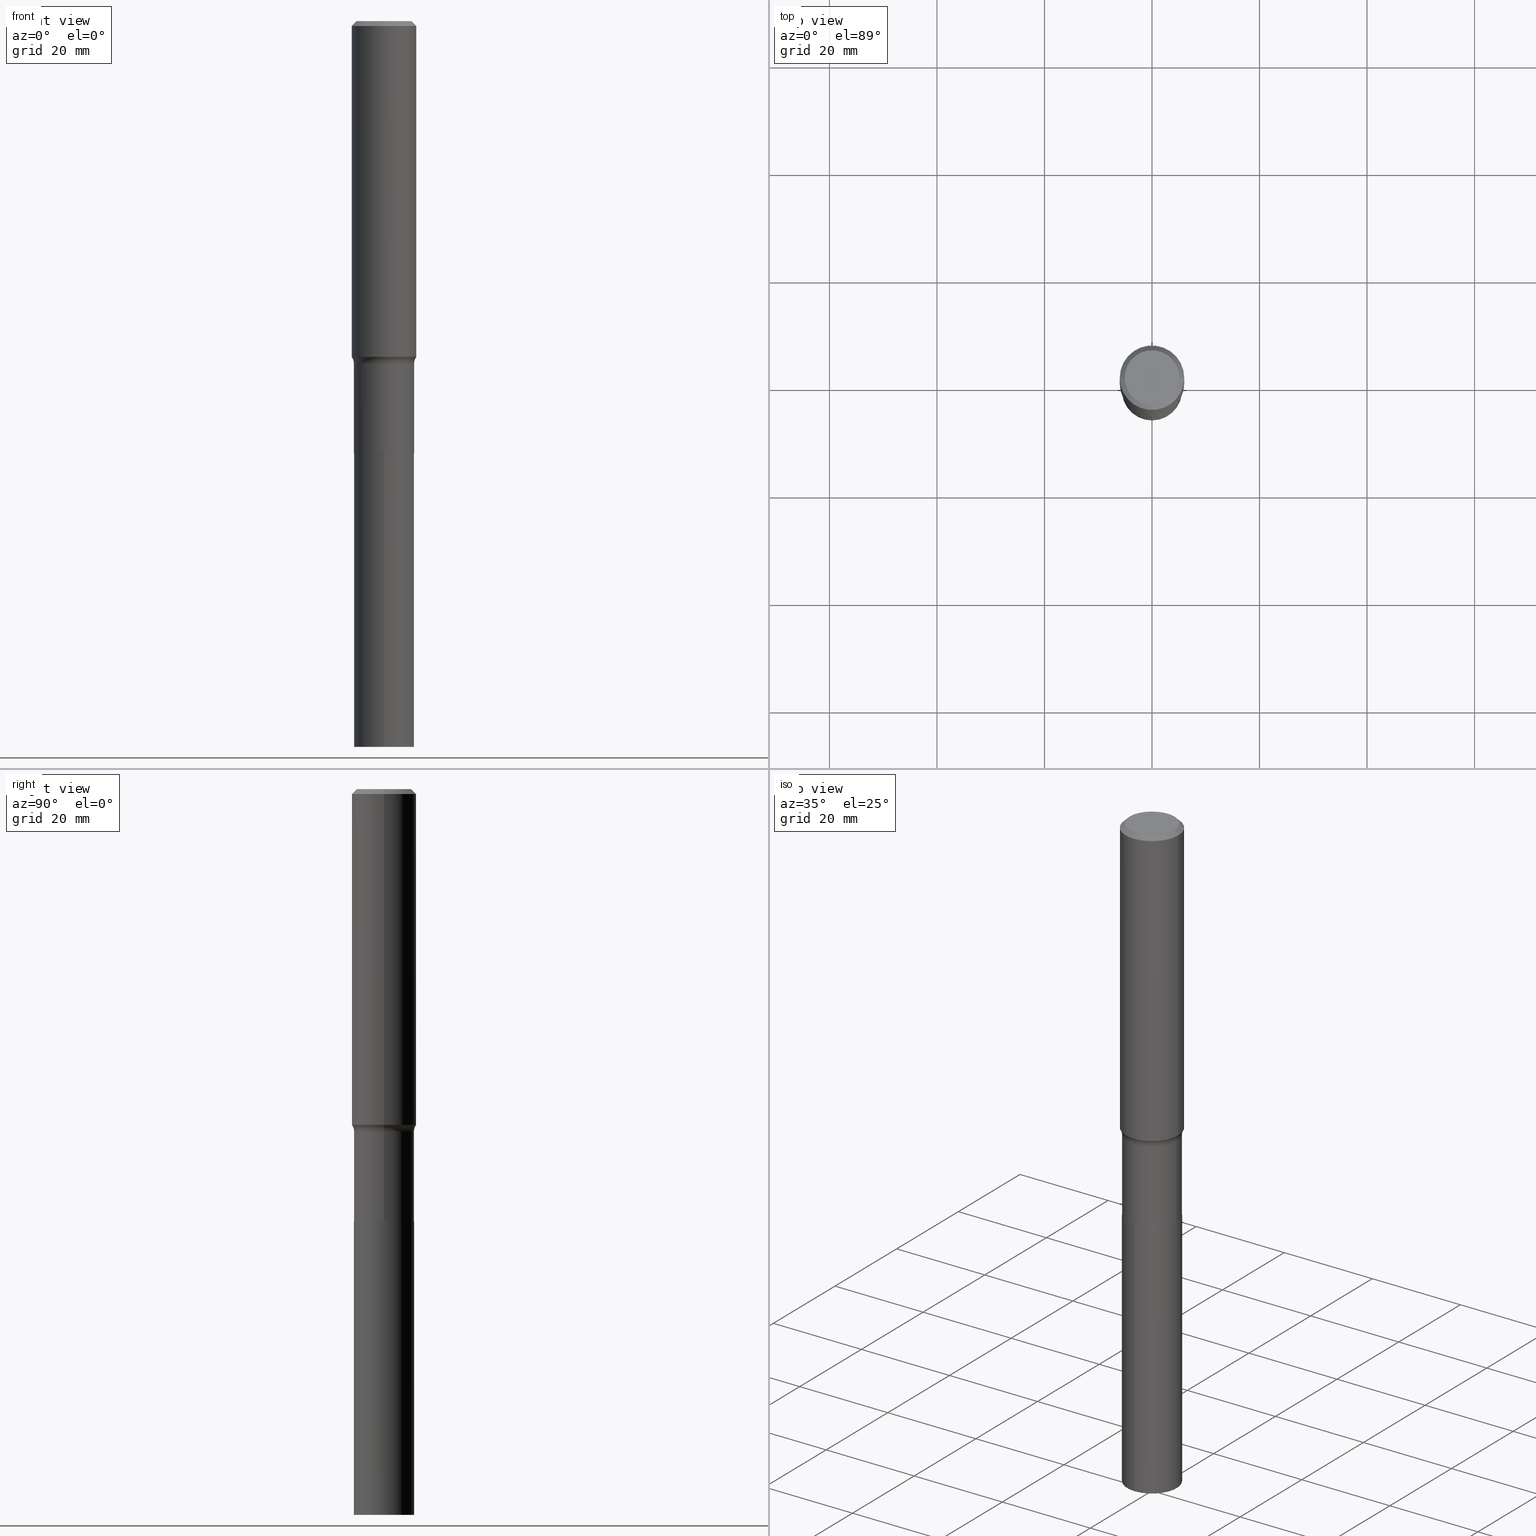
[diagram: canonical four-view strip — front | top / right | iso, engineering-drawing reading convention]
A machine part, canonical four-view strip (front | top / right | iso — engineering-drawing reading convention). The complete STEP part file that produces these views, byte-faithful:
ISO-10303-21;
HEADER;
FILE_DESCRIPTION (( 'STEP AP203' ),
    '1' );
FILE_NAME ('67900.STEP',
    '2024-04-19T16:57:50',
    ( '' ),
    ( '' ),
    'SwSTEP 2.0',
    'SolidWorks 2023',
    '' );
FILE_SCHEMA (( 'CONFIG_CONTROL_DESIGN' ));
ENDSEC;

DATA;
#1 = DIRECTION ( 'NONE',  ( 0.7071067811865453523, -7.319954787623248157E-15, -0.7071067811865496822 ) ) ;
#2 = CIRCLE ( 'NONE', #145, 0.08000000000000002942 ) ;
#3 = DIRECTION ( 'NONE',  ( 1.000000000000000000, -6.982962677686267499E-15, 4.883557194083112901E-29 ) ) ;
#4 = LINE ( 'NONE', #22, #418 ) ;
#5 = EDGE_CURVE ( 'NONE', #17, #92, #45, .T. ) ;
#6 = CARTESIAN_POINT ( 'NONE',  ( 1.299823801295359673E-28, -1.855640517026451512E-14, -5.315000000000001279 ) ) ;
#7 = AXIS2_PLACEMENT_3D ( 'NONE', #444, #439, #179 ) ;
#8 = DIRECTION ( 'NONE',  ( -2.445734654523707896E-29, 3.491100628891162670E-15, 1.000000000000000000 ) ) ;
#9 = ORIENTED_EDGE ( 'NONE', *, *, #431, .F. ) ;
#10 = CYLINDRICAL_SURFACE ( 'NONE', #7, 0.2204500000000000071 ) ;
#11 = ORIENTED_EDGE ( 'NONE', *, *, #431, .T. ) ;
#12 =( CONVERSION_BASED_UNIT ( 'INCH', #266 ) LENGTH_UNIT ( ) NAMED_UNIT ( #19 ) );
#13 = AXIS2_PLACEMENT_3D ( 'NONE', #311, #298, #128 ) ;
#14 = CC_DESIGN_PERSON_AND_ORGANIZATION_ASSIGNMENT ( #347, #320, ( #448 ) ) ;
#15 = FACE_OUTER_BOUND ( 'NONE', #130, .T. ) ;
#16 = VERTEX_POINT ( 'NONE', #91 ) ;
#17 = VERTEX_POINT ( 'NONE', #236 ) ;
#18 = ADVANCED_FACE ( 'NONE', ( #380 ), #447, .T. ) ;
#19 = DIMENSIONAL_EXPONENTS ( 1.000000000000000000, 0.000000000000000000, 0.000000000000000000, 0.000000000000000000, 0.000000000000000000, 0.000000000000000000, 0.000000000000000000 ) ;
#20 = DIRECTION ( 'NONE',  ( -0.7071067811865453523, 2.468850131082234184E-15, -0.7071067811865496822 ) ) ;
#21 = EDGE_LOOP ( 'NONE', ( #229, #195, #123, #379 ) ) ;
#22 = CARTESIAN_POINT ( 'NONE',  ( -0.2199500000000000066, -9.491191171473061362E-15, -3.166000000000000814 ) ) ;
#23 = AXIS2_PLACEMENT_3D ( 'NONE', #180, #113, #332 ) ;
#24 = APPROVAL_STATUS ( 'not_yet_approved' ) ;
#25 = DIRECTION ( 'NONE',  ( -2.445734654523707896E-29, 3.491100628891162670E-15, 1.000000000000000000 ) ) ;
#26 = ORIENTED_EDGE ( 'NONE', *, *, #423, .T. ) ;
#27 = APPROVAL_STATUS ( 'not_yet_approved' ) ;
#28 = CARTESIAN_POINT ( 'NONE',  ( 0.2361999999999999933, -1.744152810908849053E-15, -0.03543000000000021132 ) ) ;
#29 = EDGE_LOOP ( 'NONE', ( #407, #310, #228, #260 ) ) ;
#30 = APPROVAL_ROLE ( '' ) ;
#31 = CONICAL_SURFACE ( 'NONE', #90, 0.2361999999999999933, 0.7853981633974452814 ) ;
#32 = FACE_OUTER_BOUND ( 'NONE', #21, .T. ) ;
#33 = MECHANICAL_CONTEXT ( 'NONE', #258, 'mechanical' ) ;
#34 = LINE ( 'NONE', #28, #427 ) ;
#35 = DESIGN_CONTEXT ( 'detailed design', #284, 'design' ) ;
#36 = DIRECTION ( 'NONE',  ( -2.445468806185136877E-29, 3.491481338843145188E-15, 1.000000000000000000 ) ) ;
#37 = EDGE_CURVE ( 'NONE', #308, #263, #440, .T. ) ;
#38 = DIRECTION ( 'NONE',  ( -2.445734654523708177E-29, 3.491100628891163064E-15, 1.000000000000000000 ) ) ;
#39 = AXIS2_PLACEMENT_3D ( 'NONE', #421, #264, #191 ) ;
#40 = AXIS2_PLACEMENT_3D ( 'NONE', #381, #344, #48 ) ;
#41 = DIRECTION ( 'NONE',  ( -2.445734654523708177E-29, 3.491100628891163064E-15, 1.000000000000000000 ) ) ;
#42 = CARTESIAN_POINT ( 'NONE',  ( 0.3004499999999999393, -1.085082570485672199E-14, -2.506900000000000350 ) ) ;
#43 = ADVANCED_FACE ( 'NONE', ( #15 ), #345, .T. ) ;
#44 = DIRECTION ( 'NONE',  ( -6.982962677686266711E-15, -1.000000000000000000, 2.478428662884339509E-15 ) ) ;
#45 = CIRCLE ( 'NONE', #242, 0.2199500000000000066 ) ;
#46 = ORIENTED_EDGE ( 'NONE', *, *, #208, .T. ) ;
#47 = DIRECTION ( 'NONE',  ( -2.445468806185136597E-29, 3.491481338843145583E-15, 1.000000000000000000 ) ) ;
#48 = DIRECTION ( 'NONE',  ( 1.000000000000000000, -6.982962677686268288E-15, 0.000000000000000000 ) ) ;
#49 = DIRECTION ( 'NONE',  ( -2.445468806185136597E-29, 3.491481338843145583E-15, 1.000000000000000000 ) ) ;
#50 = ORIENTED_EDGE ( 'NONE', *, *, #361, .F. ) ;
#51 = CARTESIAN_POINT ( 'NONE',  ( 7.742354240382144770E-29, -1.105402991877740236E-14, -3.166000000000000814 ) ) ;
#52 = ORIENTED_EDGE ( 'NONE', *, *, #450, .F. ) ;
#53 = ORIENTED_EDGE ( 'NONE', *, *, #238, .F. ) ;
#54 = DIRECTION ( 'NONE',  ( -6.982962677686265922E-15, -1.000000000000000000, 3.491100628891162670E-15 ) ) ;
#55 = ORIENTED_EDGE ( 'NONE', *, *, #199, .F. ) ;
#56 = FACE_OUTER_BOUND ( 'NONE', #335, .T. ) ;
#57 = ORIENTED_EDGE ( 'NONE', *, *, #235, .T. ) ;
#58 = CIRCLE ( 'NONE', #231, 0.2007700000000000040 ) ;
#59 = PERSON_AND_ORGANIZATION ( #89, #232 ) ;
#60 = APPROVAL_PERSON_ORGANIZATION ( #275, #63, #395 ) ;
#61 = DIRECTION ( 'NONE',  ( -2.445468806185136597E-29, 3.491481338843145583E-15, 1.000000000000000000 ) ) ;
#62 = DIRECTION ( 'NONE',  ( -2.445468806185136597E-29, 3.491481338843145583E-15, 1.000000000000000000 ) ) ;
#63 = APPROVAL ( #27, 'UNSPECIFIED' ) ;
#64 = CARTESIAN_POINT ( 'NONE',  ( 0.2362000000000003264, -1.023574943410652512E-14, -2.459235154463693007 ) ) ;
#65 = VERTEX_POINT ( 'NONE', #338 ) ;
#66 = DATE_AND_TIME ( #138, #465 ) ;
#67 = DIRECTION ( 'NONE',  ( 0.7071067811864267805, -2.468850131080992517E-15, 0.7071067811866682540 ) ) ;
#68 = AXIS2_PLACEMENT_3D ( 'NONE', #215, #38, #44 ) ;
#69 = ADVANCED_FACE ( 'NONE', ( #302 ), #95, .F. ) ;
#70 = PERSON_AND_ORGANIZATION ( #89, #232 ) ;
#71 = CARTESIAN_POINT ( 'NONE',  ( 0.2204499999999999238, -1.029218869064181876E-14, -2.506900000000000350 ) ) ;
#72 = EDGE_CURVE ( 'NONE', #263, #308, #300, .T. ) ;
#73 = FACE_OUTER_BOUND ( 'NONE', #162, .T. ) ;
#74 = CARTESIAN_POINT ( 'NONE',  ( -0.2361999999999999933, -2.676736474870760158E-15, -0.03543000000000021132 ) ) ;
#75 = CIRCLE ( 'NONE', #133, 0.2204499999999999238 ) ;
#76 = LOCAL_TIME ( 12, 57, 50.00000000000000000, #129 ) ;
#77 = EDGE_CURVE ( 'NONE', #420, #88, #58, .T. ) ;
#78 = DIRECTION ( 'NONE',  ( 1.000000000000000000, -6.982962677686265922E-15, 4.876176775795934672E-29 ) ) ;
#79 = CYLINDRICAL_SURFACE ( 'NONE', #68, 0.2204500000000000071 ) ;
#80 = ORIENTED_EDGE ( 'NONE', *, *, #301, .F. ) ;
#81 = DIRECTION ( 'NONE',  ( 6.982962677686265922E-15, 1.000000000000000000, -3.491100628891162670E-15 ) ) ;
#82 = VECTOR ( 'NONE', #25, 39.37007874015748143 ) ;
#83 = CONICAL_SURFACE ( 'NONE', #200, 0.2199500000000000066, 0.7853981633972775267 ) ;
#84 = CARTESIAN_POINT ( 'NONE',  ( -1.001697619218023151E-46, 1.430158722866391908E-32, 4.096137381448114529E-18 ) ) ;
#85 = DIRECTION ( 'NONE',  ( -2.445734654523708457E-29, 3.491100628891162670E-15, 1.000000000000000000 ) ) ;
#86 = CARTESIAN_POINT ( 'NONE',  ( 6.130545750225519686E-29, -8.752794568345882481E-15, -2.506900000000000350 ) ) ;
#87 = EDGE_CURVE ( 'NONE', #420, #308, #34, .T. ) ;
#88 = VERTEX_POINT ( 'NONE', #468 ) ;
#89 = PERSON ( 'UNSPECIFIED', 'UNSPECIFIED', 'UNSPECIFIED', ('UNSPECIFIED'), ('UNSPECIFIED'), ('UNSPECIFIED') ) ;
#90 = AXIS2_PLACEMENT_3D ( 'NONE', #98, #290, #426 ) ;
#91 = CARTESIAN_POINT ( 'NONE',  ( -0.2204500000000000071, -8.336147912243791745E-15, -3.165500000000000203 ) ) ;
#92 = VERTEX_POINT ( 'NONE', #139 ) ;
#93 = PERSON_AND_ORGANIZATION_ROLE ( 'creator' ) ;
#94 = LINE ( 'NONE', #385, #255 ) ;
#95 = TOROIDAL_SURFACE ( 'NONE', #386, 0.3004499999999999393, 0.08000000000000001554 ) ;
#96 = AXIS2_PLACEMENT_3D ( 'NONE', #112, #408, #81 ) ;
#97 = MANIFOLD_SOLID_BREP ( 'Body-Move/Copy2[1]', #161 ) ;
#98 = CARTESIAN_POINT ( 'NONE',  ( 8.664295980313991736E-31, -1.237031838352133832E-16, -0.03543000000000021132 ) ) ;
#99 = APPROVAL ( #273, 'UNSPECIFIED' ) ;
#100 = DIRECTION ( 'NONE',  ( -2.438088387897960049E-29, 3.491481338843145188E-15, 1.000000000000000000 ) ) ;
#101 = ORIENTED_EDGE ( 'NONE', *, *, #301, .T. ) ;
#102 = DIRECTION ( 'NONE',  ( 1.000000000000000000, -6.982962677686265133E-15, 0.000000000000000000 ) ) ;
#103 = APPROVAL_ROLE ( '' ) ;
#104 = AXIS2_PLACEMENT_3D ( 'NONE', #382, #371, #197 ) ;
#105 = DIRECTION ( 'NONE',  ( 1.000000000000000000, -6.982962677686266711E-15, 0.000000000000000000 ) ) ;
#106 = CARTESIAN_POINT ( 'NONE',  ( 0.2361999999999999933, -1.773078968304709514E-15, -0.03543000000000021132 ) ) ;
#107 = FACE_OUTER_BOUND ( 'NONE', #165, .T. ) ;
#108 = EDGE_CURVE ( 'NONE', #455, #263, #357, .T. ) ;
#109 = CARTESIAN_POINT ( 'NONE',  ( 7.742354240382144770E-29, -1.105402991877740236E-14, -3.166000000000000814 ) ) ;
#110 = LOCAL_TIME ( 12, 57, 50.00000000000000000, #317 ) ;
#111 = AXIS2_PLACEMENT_3D ( 'NONE', #184, #149, #3 ) ;
#112 = CARTESIAN_POINT ( 'NONE',  ( 7.742354240382144770E-29, -1.105402991877740236E-14, -3.166000000000000814 ) ) ;
#113 = DIRECTION ( 'NONE',  ( -2.445468806185136597E-29, 3.491481338843145583E-15, 1.000000000000000000 ) ) ;
#114 = ORIENTED_EDGE ( 'NONE', *, *, #77, .F. ) ;
#115 = EDGE_CURVE ( 'NONE', #268, #65, #398, .T. ) ;
#116 = CONICAL_SURFACE ( 'NONE', #210, 0.2199500000000000066, 0.7853981633972775267 ) ;
#117 = VECTOR ( 'NONE', #20, 39.37007874015748143 ) ;
#118 = ORIENTED_EDGE ( 'NONE', *, *, #297, .F. ) ;
#119 = LINE ( 'NONE', #237, #117 ) ;
#120 = VERTEX_POINT ( 'NONE', #71 ) ;
#121 =( LENGTH_UNIT ( ) NAMED_UNIT ( * ) SI_UNIT ( $, .METRE. ) );
#122 = ORIENTED_EDGE ( 'NONE', *, *, #115, .T. ) ;
#123 = ORIENTED_EDGE ( 'NONE', *, *, #37, .F. ) ;
#124 = ORIENTED_EDGE ( 'NONE', *, *, #392, .F. ) ;
#125 = AXIS2_PLACEMENT_3D ( 'NONE', #401, #217, #78 ) ;
#126 = AXIS2_PLACEMENT_3D ( 'NONE', #437, #251, #331 ) ;
#127 = CC_DESIGN_PERSON_AND_ORGANIZATION_ASSIGNMENT ( #70, #425, ( #448 ) ) ;
#128 = DIRECTION ( 'NONE',  ( 1.000000000000000000, -6.982962677686262766E-15, 0.000000000000000000 ) ) ;
#129 = COORDINATED_UNIVERSAL_TIME_OFFSET ( 5, 0, .BEHIND. ) ;
#130 = EDGE_LOOP ( 'NONE', ( #454, #230, #233, #226 ) ) ;
#131 = COORDINATED_UNIVERSAL_TIME_OFFSET ( 5, 0, .BEHIND. ) ;
#132 = CARTESIAN_POINT ( 'NONE',  ( 7.742354240382144770E-29, -1.105402991877740236E-14, -3.166000000000000814 ) ) ;
#133 = AXIS2_PLACEMENT_3D ( 'NONE', #168, #326, #321 ) ;
#134 = APPROVAL_DATE_TIME ( #66, #99 ) ;
#135 = CARTESIAN_POINT ( 'NONE',  ( 0.2199500000000000066, -1.258993255973449563E-14, -3.166000000000000814 ) ) ;
#136 = ADVANCED_FACE ( 'NONE', ( #167 ), #116, .T. ) ;
#137 = CARTESIAN_POINT ( 'NONE',  ( 6.130545750225519686E-29, -8.752794568345882481E-15, -2.506900000000000350 ) ) ;
#138 = CALENDAR_DATE ( 2024, 19, 4 ) ;
#139 = CARTESIAN_POINT ( 'NONE',  ( 0.2199500000000000066, -1.258993255973449563E-14, -3.166000000000000814 ) ) ;
#140 = AXIS2_PLACEMENT_3D ( 'NONE', #132, #389, #430 ) ;
#141 = FACE_OUTER_BOUND ( 'NONE', #306, .T. ) ;
#142 = CYLINDRICAL_SURFACE ( 'NONE', #125, 0.2204499999999999793 ) ;
#143 = DIRECTION ( 'NONE',  ( 1.000000000000000000, -6.982962677686257244E-15, 0.000000000000000000 ) ) ;
#144 = CARTESIAN_POINT ( 'NONE',  ( -1.539394122295859956E-15, -0.2204500000000110538, -3.165999999999999925 ) ) ;
#145 = AXIS2_PLACEMENT_3D ( 'NONE', #42, #295, #143 ) ;
#146 = CC_DESIGN_APPROVAL ( #99, ( #448 ) ) ;
#147 = ADVANCED_BREP_SHAPE_REPRESENTATION ( '67900', ( #97, #249, #378 ), #354 ) ;
#148 = ADVANCED_FACE ( 'NONE', ( #141 ), #31, .T. ) ;
#149 = DIRECTION ( 'NONE',  ( -2.445468806185136597E-29, 3.491481338843145583E-15, 1.000000000000000000 ) ) ;
#150 = FACE_OUTER_BOUND ( 'NONE', #388, .T. ) ;
#151 = EDGE_LOOP ( 'NONE', ( #274, #370, #9, #222 ) ) ;
#152 = ORIENTED_EDGE ( 'NONE', *, *, #383, .F. ) ;
#153 = AXIS2_PLACEMENT_3D ( 'NONE', #460, #100, #173 ) ;
#154 = CC_DESIGN_APPROVAL ( #63, ( #218 ) ) ;
#155 = VERTEX_POINT ( 'NONE', #213 ) ;
#156 =( NAMED_UNIT ( * ) PLANE_ANGLE_UNIT ( ) SI_UNIT ( $, .RADIAN. ) );
#157 = EDGE_CURVE ( 'NONE', #16, #155, #94, .T. ) ;
#158 = PRODUCT ( '67900', '67900', '', ( #33 ) ) ;
#159 = CARTESIAN_POINT ( 'NONE',  ( 0.000000000000000000, 0.000000000000000000, 0.000000000000000000 ) ) ;
#160 = ORIENTED_EDGE ( 'NONE', *, *, #254, .F. ) ;
#161 = CLOSED_SHELL ( 'NONE', ( #252, #461, #294, #366 ) ) ;
#162 = EDGE_LOOP ( 'NONE', ( #53, #52, #57, #399 ) ) ;
#163 = EDGE_CURVE ( 'NONE', #92, #390, #286, .T. ) ;
#164 = COORDINATED_UNIVERSAL_TIME_OFFSET ( 5, 0, .BEHIND. ) ;
#165 = EDGE_LOOP ( 'NONE', ( #243, #122, #80, #394 ) ) ;
#166 = PERSON_AND_ORGANIZATION_ROLE ( 'design_owner' ) ;
#167 = FACE_OUTER_BOUND ( 'NONE', #193, .T. ) ;
#168 = CARTESIAN_POINT ( 'NONE',  ( 6.130545750225519686E-29, -8.752794568345882481E-15, -2.506900000000000350 ) ) ;
#169 = EDGE_CURVE ( 'NONE', #206, #308, #434, .T. ) ;
#170 = PERSON_AND_ORGANIZATION ( #89, #232 ) ;
#171 = CYLINDRICAL_SURFACE ( 'NONE', #198, 0.2362000000000001321 ) ;
#172 = DATE_AND_TIME ( #391, #76 ) ;
#173 = DIRECTION ( 'NONE',  ( 1.000000000000000000, -6.982962677686265922E-15, 4.876176775795935793E-29 ) ) ;
#174 = DIRECTION ( 'NONE',  ( -2.445468806185136597E-29, 3.491481338843145583E-15, 1.000000000000000000 ) ) ;
#175 = UNCERTAINTY_MEASURE_WITH_UNIT (LENGTH_MEASURE( 1.000000000000000082E-05 ), #12, 'distance_accuracy_value', 'NONE');
#176 = DIRECTION ( 'NONE',  ( -6.982962677686266711E-15, -1.000000000000000000, 2.478428662884339509E-15 ) ) ;
#177 = CC_DESIGN_DATE_AND_TIME_ASSIGNMENT ( #356, #240, ( #218 ) ) ;
#178 = PLANE ( 'NONE',  #96 ) ;
#179 = DIRECTION ( 'NONE',  ( -6.982962677686266711E-15, -1.000000000000000000, 2.478428662884339509E-15 ) ) ;
#180 = CARTESIAN_POINT ( 'NONE',  ( 6.013982857314848036E-29, -8.586373649637023862E-15, -2.459235154463693007 ) ) ;
#181 = AXIS2_PLACEMENT_3D ( 'NONE', #293, #47, #365 ) ;
#182 = APPROVAL_PERSON_ORGANIZATION ( #351, #99, #30 ) ;
#183 = ORIENTED_EDGE ( 'NONE', *, *, #342, .T. ) ;
#184 = CARTESIAN_POINT ( 'NONE',  ( 6.130545750225519686E-29, -8.752794568345882481E-15, -2.506900000000000350 ) ) ;
#185 = CC_DESIGN_PERSON_AND_ORGANIZATION_ASSIGNMENT ( #59, #166, ( #158 ) ) ;
#186 = EDGE_LOOP ( 'NONE', ( #118, #373, #375, #415 ) ) ;
#187 = CARTESIAN_POINT ( 'NONE',  ( -5.399434963045656644E-29, -4.490292000241185816E-14, -5.315000000000001279 ) ) ;
#188 = DIRECTION ( 'NONE',  ( 1.000000000000000000, -6.982962677686266711E-15, 4.876176775795936353E-29 ) ) ;
#189 = ORIENTED_EDGE ( 'NONE', *, *, #221, .F. ) ;
#190 = DIRECTION ( 'NONE',  ( 1.000000000000000000, -6.982962677686265133E-15, 0.000000000000000000 ) ) ;
#191 = DIRECTION ( 'NONE',  ( -1.000000000000000000, 6.982962677686266711E-15, 0.000000000000000000 ) ) ;
#192 = AXIS2_PLACEMENT_3D ( 'NONE', #187, #85, #54 ) ;
#193 = EDGE_LOOP ( 'NONE', ( #124, #203, #409, #152 ) ) ;
#194 = DIRECTION ( 'NONE',  ( -2.445468806185136597E-29, 3.491481338843145583E-15, 1.000000000000000000 ) ) ;
#195 = ORIENTED_EDGE ( 'NONE', *, *, #108, .T. ) ;
#196 =( NAMED_UNIT ( * ) SI_UNIT ( $, .STERADIAN. ) SOLID_ANGLE_UNIT ( ) );
#197 = DIRECTION ( 'NONE',  ( 1.000000000000000000, -6.982962677686266711E-15, 0.000000000000000000 ) ) ;
#198 = AXIS2_PLACEMENT_3D ( 'NONE', #324, #246, #220 ) ;
#199 = EDGE_CURVE ( 'NONE', #120, #155, #328, .T. ) ;
#200 = AXIS2_PLACEMENT_3D ( 'NONE', #51, #225, #190 ) ;
#201 = CALENDAR_DATE ( 2024, 19, 4 ) ;
#202 = CARTESIAN_POINT ( 'NONE',  ( 0.2362000000000001321, -1.649375784469497117E-15, 1.151752954443000789E-29 ) ) ;
#203 = ORIENTED_EDGE ( 'NONE', *, *, #5, .T. ) ;
#204 = ADVANCED_FACE ( 'NONE', ( #211 ), #245, .F. ) ;
#205 = FACE_OUTER_BOUND ( 'NONE', #343, .T. ) ;
#206 = VERTEX_POINT ( 'NONE', #64 ) ;
#207 = APPLICATION_PROTOCOL_DEFINITION ( 'international standard', 'config_control_design', 1994, #284 ) ;
#208 = EDGE_CURVE ( 'NONE', #65, #413, #346, .T. ) ;
#209 = DIRECTION ( 'NONE',  ( -2.445468806185136597E-29, 3.491481338843145583E-15, 1.000000000000000000 ) ) ;
#210 = AXIS2_PLACEMENT_3D ( 'NONE', #396, #466, #244 ) ;
#211 = FACE_OUTER_BOUND ( 'NONE', #445, .T. ) ;
#212 = DATE_TIME_ROLE ( 'classification_date' ) ;
#213 = CARTESIAN_POINT ( 'NONE',  ( -0.2204499999999999238, -8.336147912243791745E-15, -2.506900000000000350 ) ) ;
#214 = ADVANCED_FACE ( 'NONE', ( #205 ), #327, .F. ) ;
#215 = CARTESIAN_POINT ( 'NONE',  ( 7.742354240382144770E-29, -1.105402991877740236E-14, -3.166000000000000814 ) ) ;
#216 = VECTOR ( 'NONE', #283, 39.37007874015748143 ) ;
#217 = DIRECTION ( 'NONE',  ( -2.445468806185136597E-29, 3.491481338843145583E-15, 1.000000000000000000 ) ) ;
#218 = PRODUCT_DEFINITION ( 'UNKNOWN', '', #448, #35 ) ;
#219 = EDGE_CURVE ( 'NONE', #155, #120, #75, .T. ) ;
#220 = DIRECTION ( 'NONE',  ( 1.000000000000000000, -6.982962677686266711E-15, 4.876176775795936353E-29 ) ) ;
#221 = EDGE_CURVE ( 'NONE', #92, #17, #410, .T. ) ;
#222 = ORIENTED_EDGE ( 'NONE', *, *, #163, .F. ) ;
#223 = CARTESIAN_POINT ( 'NONE',  ( 0.2204500000000000071, -1.259167830040391635E-14, -3.165500000000000203 ) ) ;
#224 = AXIS2_PLACEMENT_3D ( 'NONE', #414, #62, #105 ) ;
#225 = DIRECTION ( 'NONE',  ( -2.445468806185136597E-29, 3.491481338843145583E-15, 1.000000000000000000 ) ) ;
#226 = ORIENTED_EDGE ( 'NONE', *, *, #72, .F. ) ;
#227 = ADVANCED_FACE ( 'NONE', ( #32 ), #171, .T. ) ;
#228 = ORIENTED_EDGE ( 'NONE', *, *, #441, .T. ) ;
#229 = ORIENTED_EDGE ( 'NONE', *, *, #450, .T. ) ;
#230 = ORIENTED_EDGE ( 'NONE', *, *, #297, .T. ) ;
#231 = AXIS2_PLACEMENT_3D ( 'NONE', #432, #61, #349 ) ;
#232 = ORGANIZATION ( 'UNSPECIFIED', 'UNSPECIFIED', '' ) ;
#233 = ORIENTED_EDGE ( 'NONE', *, *, #169, .T. ) ;
#234 = APPLICATION_PROTOCOL_DEFINITION ( 'international standard', 'config_control_design', 1994, #258 ) ;
#235 = EDGE_CURVE ( 'NONE', #206, #120, #2, .T. ) ;
#236 = CARTESIAN_POINT ( 'NONE',  ( -0.2199500000000000066, -9.488541944298949372E-15, -3.166000000000000814 ) ) ;
#237 = CARTESIAN_POINT ( 'NONE',  ( -0.2361999999999999933, 1.525672600634282748E-15, -0.03543000000000021132 ) ) ;
#238 = EDGE_CURVE ( 'NONE', #455, #155, #261, .T. ) ;
#239 = ORIENTED_EDGE ( 'NONE', *, *, #157, .F. ) ;
#240 = DATE_TIME_ROLE ( 'creation_date' ) ;
#241 = DIRECTION ( 'NONE',  ( 1.000000000000000000, -6.982962677686267499E-15, 4.883557194083112901E-29 ) ) ;
#242 = AXIS2_PLACEMENT_3D ( 'NONE', #315, #312, #419 ) ;
#243 = ORIENTED_EDGE ( 'NONE', *, *, #361, .T. ) ;
#244 = DIRECTION ( 'NONE',  ( 1.000000000000000000, -6.982962677686265133E-15, 0.000000000000000000 ) ) ;
#245 = PLANE ( 'NONE',  #359 ) ;
#246 = DIRECTION ( 'NONE',  ( -2.445468806185136597E-29, 3.491481338843145583E-15, 1.000000000000000000 ) ) ;
#247 = CIRCLE ( 'NONE', #323, 0.2204500000000000071 ) ;
#248 = DATE_AND_TIME ( #279, #313 ) ;
#249 = MANIFOLD_SOLID_BREP ( 'Body-Move/Copy2[2]', #277 ) ;
#250 = CARTESIAN_POINT ( 'NONE',  ( 1.566391460983218021E-15, 0.2204499999999889326, -3.166000000000001258 ) ) ;
#251 = DIRECTION ( 'NONE',  ( -2.445468806185136597E-29, 3.491481338843145583E-15, 1.000000000000000000 ) ) ;
#252 = ADVANCED_FACE ( 'NONE', ( #107 ), #10, .T. ) ;
#253 = DIRECTION ( 'NONE',  ( -6.982962677686266711E-15, -1.000000000000000000, 4.956857325768679019E-15 ) ) ;
#254 = EDGE_CURVE ( 'NONE', #268, #267, #377, .T. ) ;
#255 = VECTOR ( 'NONE', #36, 39.37007874015748143 ) ;
#256 = CARTESIAN_POINT ( 'NONE',  ( 1.566391460983244448E-15, 0.2204499999999814663, -5.315000000000003055 ) ) ;
#257 = DIRECTION ( 'NONE',  ( 7.105427357601001859E-15, 1.000000000000000000, -3.491481338843145583E-15 ) ) ;
#258 = APPLICATION_CONTEXT ( 'configuration controlled 3d designs of mechanical parts and assemblies' ) ;
#259 = DIRECTION ( 'NONE',  ( -2.445468806185136877E-29, 3.491481338843145188E-15, 1.000000000000000000 ) ) ;
#260 = ORIENTED_EDGE ( 'NONE', *, *, #72, .T. ) ;
#261 = CIRCLE ( 'NONE', #322, 0.08000000000000002942 ) ;
#262 = CIRCLE ( 'NONE', #40, 0.2362000000000002986 ) ;
#263 = VERTEX_POINT ( 'NONE', #74 ) ;
#264 = DIRECTION ( 'NONE',  ( 2.445468806185136597E-29, -3.491481338843145583E-15, -1.000000000000000000 ) ) ;
#265 = CC_DESIGN_PERSON_AND_ORGANIZATION_ASSIGNMENT ( #314, #93, ( #218 ) ) ;
#266 = LENGTH_MEASURE_WITH_UNIT ( LENGTH_MEASURE( 0.02539999999999999897 ), #121 );
#267 = VERTEX_POINT ( 'NONE', #402 ) ;
#268 = VERTEX_POINT ( 'NONE', #256 ) ;
#269 = AXIS2_PLACEMENT_3D ( 'NONE', #369, #336, #253 ) ;
#270 = CIRCLE ( 'NONE', #387, 0.2204500000000000071 ) ;
#271 = DIRECTION ( 'NONE',  ( 0.000000000000000000, 0.000000000000000000, 1.000000000000000000 ) ) ;
#272 = ORIENTED_EDGE ( 'NONE', *, *, #219, .F. ) ;
#273 = APPROVAL_STATUS ( 'not_yet_approved' ) ;
#274 = ORIENTED_EDGE ( 'NONE', *, *, #221, .T. ) ;
#275 = PERSON_AND_ORGANIZATION ( #89, #232 ) ;
#276 = DIRECTION ( 'NONE',  ( -2.445468806185136597E-29, 3.491481338843145583E-15, 1.000000000000000000 ) ) ;
#277 = CLOSED_SHELL ( 'NONE', ( #443, #148, #227, #69, #292, #289, #318, #43, #18, #204, #214, #136 ) ) ;
#278 = LOCAL_TIME ( 12, 57, 50.00000000000000000, #325 ) ;
#279 = CALENDAR_DATE ( 2024, 19, 4 ) ;
#280 = DIRECTION ( 'NONE',  ( 1.000000000000000000, -6.982962677686265133E-15, 0.000000000000000000 ) ) ;
#281 = ORIENTED_EDGE ( 'NONE', *, *, #208, .F. ) ;
#282 = APPROVAL_DATE_TIME ( #172, #63 ) ;
#283 = DIRECTION ( 'NONE',  ( -2.445468806185136877E-29, 3.491481338843145188E-15, 1.000000000000000000 ) ) ;
#284 = APPLICATION_CONTEXT ( 'configuration controlled 3d designs of mechanical parts and assemblies' ) ;
#285 = PERSON_AND_ORGANIZATION_ROLE ( 'classification_officer' ) ;
#286 = LINE ( 'NONE', #135, #353 ) ;
#287 = VECTOR ( 'NONE', #348, 39.37007874015748143 ) ;
#288 = VECTOR ( 'NONE', #259, 39.37007874015748143 ) ;
#289 = ADVANCED_FACE ( 'NONE', ( #150 ), #142, .T. ) ;
#290 = DIRECTION ( 'NONE',  ( 2.445468806185136597E-29, -3.491481338843145583E-15, -1.000000000000000000 ) ) ;
#291 = FACE_OUTER_BOUND ( 'NONE', #417, .T. ) ;
#292 = ADVANCED_FACE ( 'NONE', ( #334 ), #406, .T. ) ;
#293 = CARTESIAN_POINT ( 'NONE',  ( 0.000000000000000000, 0.000000000000000000, 0.000000000000000000 ) ) ;
#294 = ADVANCED_FACE ( 'NONE', ( #358 ), #79, .T. ) ;
#295 = DIRECTION ( 'NONE',  ( -6.982962677686266711E-15, -1.000000000000000000, 3.491481338843145583E-15 ) ) ;
#296 = CARTESIAN_POINT ( 'NONE',  ( 0.2204499999999999793, -1.539394122295937264E-15, 1.074953170224213743E-29 ) ) ;
#297 = EDGE_CURVE ( 'NONE', #455, #206, #436, .T. ) ;
#298 = DIRECTION ( 'NONE',  ( -2.445468806185136597E-29, 3.491481338843145583E-15, 1.000000000000000000 ) ) ;
#299 = EDGE_LOOP ( 'NONE', ( #11, #458, #55, #341 ) ) ;
#300 = CIRCLE ( 'NONE', #224, 0.2361999999999999933 ) ;
#301 = EDGE_CURVE ( 'NONE', #413, #65, #270, .T. ) ;
#302 = FACE_OUTER_BOUND ( 'NONE', #186, .T. ) ;
#303 = CC_DESIGN_APPROVAL ( #363, ( #340 ) ) ;
#304 = ORIENTED_EDGE ( 'NONE', *, *, #307, .T. ) ;
#305 = CARTESIAN_POINT ( 'NONE',  ( -1.539394122295859956E-15, -0.2204500000000110538, -3.165999999999999925 ) ) ;
#306 = EDGE_LOOP ( 'NONE', ( #114, #424, #309, #350 ) ) ;
#307 = EDGE_CURVE ( 'NONE', #267, #413, #330, .T. ) ;
#308 = VERTEX_POINT ( 'NONE', #106 ) ;
#309 = ORIENTED_EDGE ( 'NONE', *, *, #37, .T. ) ;
#310 = ORIENTED_EDGE ( 'NONE', *, *, #423, .F. ) ;
#311 = CARTESIAN_POINT ( 'NONE',  ( 7.741131505979050848E-29, -1.105228417810798007E-14, -3.165500000000000203 ) ) ;
#312 = DIRECTION ( 'NONE',  ( -2.445468806185136597E-29, 3.491481338843145583E-15, 1.000000000000000000 ) ) ;
#313 = LOCAL_TIME ( 12, 57, 50.00000000000000000, #131 ) ;
#314 = PERSON_AND_ORGANIZATION ( #89, #232 ) ;
#315 = CARTESIAN_POINT ( 'NONE',  ( 7.742354240382144770E-29, -1.105402991877740236E-14, -3.166000000000000814 ) ) ;
#316 = ORIENTED_EDGE ( 'NONE', *, *, #115, .F. ) ;
#317 = COORDINATED_UNIVERSAL_TIME_OFFSET ( 5, 0, .BEHIND. ) ;
#318 = ADVANCED_FACE ( 'NONE', ( #73 ), #333, .F. ) ;
#319 = DIRECTION ( 'NONE',  ( 2.438088387897960049E-29, -3.491481338843145188E-15, -1.000000000000000000 ) ) ;
#320 = PERSON_AND_ORGANIZATION_ROLE ( 'creator' ) ;
#321 = DIRECTION ( 'NONE',  ( 1.000000000000000000, -6.982962677686265133E-15, 0.000000000000000000 ) ) ;
#322 = AXIS2_PLACEMENT_3D ( 'NONE', #438, #257, #405 ) ;
#323 = AXIS2_PLACEMENT_3D ( 'NONE', #6, #442, #362 ) ;
#324 = CARTESIAN_POINT ( 'NONE',  ( 0.000000000000000000, 0.000000000000000000, 0.000000000000000000 ) ) ;
#325 = COORDINATED_UNIVERSAL_TIME_OFFSET ( 5, 0, .BEHIND. ) ;
#326 = DIRECTION ( 'NONE',  ( -2.445468806185136597E-29, 3.491481338843145583E-15, 1.000000000000000000 ) ) ;
#327 = PLANE ( 'NONE',  #153 ) ;
#328 = CIRCLE ( 'NONE', #464, 0.2204499999999999238 ) ;
#329 = APPROVAL_PERSON_ORGANIZATION ( #433, #363, #103 ) ;
#330 = LINE ( 'NONE', #144, #404 ) ;
#331 = DIRECTION ( 'NONE',  ( 1.000000000000000000, -6.982962677686262766E-15, 0.000000000000000000 ) ) ;
#332 = DIRECTION ( 'NONE',  ( 1.000000000000000000, -6.982962677686268288E-15, 0.000000000000000000 ) ) ;
#333 = TOROIDAL_SURFACE ( 'NONE', #111, 0.3004499999999999393, 0.08000000000000001554 ) ;
#334 = FACE_OUTER_BOUND ( 'NONE', #299, .T. ) ;
#335 = EDGE_LOOP ( 'NONE', ( #50, #160 ) ) ;
#336 = DIRECTION ( 'NONE',  ( -2.445734654523708177E-29, 3.491100628891163064E-15, 1.000000000000000000 ) ) ;
#337 = CARTESIAN_POINT ( 'NONE',  ( 0.2007700000000000040, -1.560767496960719672E-15, 4.096137381458473721E-18 ) ) ;
#338 = CARTESIAN_POINT ( 'NONE',  ( 1.566391460983270875E-15, 0.2204499999999889326, -3.166000000000001258 ) ) ;
#339 = ORIENTED_EDGE ( 'NONE', *, *, #77, .T. ) ;
#340 = SECURITY_CLASSIFICATION ( '', '', #384 ) ;
#341 = ORIENTED_EDGE ( 'NONE', *, *, #342, .F. ) ;
#342 = EDGE_CURVE ( 'NONE', #390, #120, #364, .T. ) ;
#343 = EDGE_LOOP ( 'NONE', ( #189, #367 ) ) ;
#344 = DIRECTION ( 'NONE',  ( -2.445468806185136597E-29, 3.491481338843145583E-15, 1.000000000000000000 ) ) ;
#345 = CYLINDRICAL_SURFACE ( 'NONE', #435, 0.2362000000000001321 ) ;
#346 = CIRCLE ( 'NONE', #140, 0.2204500000000000071 ) ;
#347 = PERSON_AND_ORGANIZATION ( #89, #232 ) ;
#348 = DIRECTION ( 'NONE',  ( -2.445468806185136877E-29, 3.491481338843145188E-15, 1.000000000000000000 ) ) ;
#349 = DIRECTION ( 'NONE',  ( 1.000000000000000000, -6.982962677686266711E-15, 4.876140833081945105E-29 ) ) ;
#350 = ORIENTED_EDGE ( 'NONE', *, *, #441, .F. ) ;
#351 = PERSON_AND_ORGANIZATION ( #89, #232 ) ;
#352 = CARTESIAN_POINT ( 'NONE',  ( -5.008488096090115757E-47, 7.150793614331959538E-33, 2.048068690724057264E-18 ) ) ;
#353 = VECTOR ( 'NONE', #67, 39.37007874015748143 ) ;
#354 =( GEOMETRIC_REPRESENTATION_CONTEXT ( 3 ) GLOBAL_UNCERTAINTY_ASSIGNED_CONTEXT ( ( #175 ) ) GLOBAL_UNIT_ASSIGNED_CONTEXT ( ( #12, #156, #196 ) ) REPRESENTATION_CONTEXT ( 'NONE', 'WORKASPACE' ) );
#355 = CARTESIAN_POINT ( 'NONE',  ( -0.2362000000000001321, 1.678301941865357577E-15, -1.161852468318209457E-29 ) ) ;
#356 = DATE_AND_TIME ( #467, #278 ) ;
#357 = LINE ( 'NONE', #355, #287 ) ;
#358 = FACE_OUTER_BOUND ( 'NONE', #422, .T. ) ;
#359 = AXIS2_PLACEMENT_3D ( 'NONE', #352, #319, #463 ) ;
#360 = AXIS2_PLACEMENT_3D ( 'NONE', #84, #194, #449 ) ;
#361 = EDGE_CURVE ( 'NONE', #267, #268, #247, .T. ) ;
#362 = DIRECTION ( 'NONE',  ( -6.982962677686266711E-15, -1.000000000000000000, 4.956857325768679019E-15 ) ) ;
#363 = APPROVAL ( #24, 'UNSPECIFIED' ) ;
#364 = LINE ( 'NONE', #296, #288 ) ;
#365 = DIRECTION ( 'NONE',  ( 1.000000000000000000, -6.982962677686265922E-15, 4.876176775795934672E-29 ) ) ;
#366 = ADVANCED_FACE ( 'NONE', ( #291 ), #178, .F. ) ;
#367 = ORIENTED_EDGE ( 'NONE', *, *, #5, .F. ) ;
#368 = CIRCLE ( 'NONE', #13, 0.2204500000000000071 ) ;
#369 = CARTESIAN_POINT ( 'NONE',  ( 1.299823801295359673E-28, -1.855640517026451512E-14, -5.315000000000001279 ) ) ;
#370 = ORIENTED_EDGE ( 'NONE', *, *, #392, .T. ) ;
#371 = DIRECTION ( 'NONE',  ( -2.445468806185136597E-29, 3.491481338843145583E-15, 1.000000000000000000 ) ) ;
#372 = PRODUCT_RELATED_PRODUCT_CATEGORY ( 'detail', '', ( #158 ) ) ;
#373 = ORIENTED_EDGE ( 'NONE', *, *, #238, .T. ) ;
#374 = FACE_OUTER_BOUND ( 'NONE', #151, .T. ) ;
#375 = ORIENTED_EDGE ( 'NONE', *, *, #219, .T. ) ;
#376 = ORIENTED_EDGE ( 'NONE', *, *, #383, .T. ) ;
#377 = CIRCLE ( 'NONE', #269, 0.2204500000000000071 ) ;
#378 = AXIS2_PLACEMENT_3D ( 'NONE', #159, #271, #462 ) ;
#379 = ORIENTED_EDGE ( 'NONE', *, *, #169, .F. ) ;
#380 = FACE_OUTER_BOUND ( 'NONE', #29, .T. ) ;
#381 = CARTESIAN_POINT ( 'NONE',  ( 6.013982857314848036E-29, -8.586373649637023862E-15, -2.459235154463693007 ) ) ;
#382 = CARTESIAN_POINT ( 'NONE',  ( 8.664295980313991736E-31, -1.237031838352133832E-16, -0.03543000000000021132 ) ) ;
#383 = EDGE_CURVE ( 'NONE', #16, #390, #411, .T. ) ;
#384 = SECURITY_CLASSIFICATION_LEVEL ( 'unclassified' ) ;
#385 = CARTESIAN_POINT ( 'NONE',  ( -0.2204499999999999793, 1.566391460983140713E-15, -1.084379240646693833E-29 ) ) ;
#386 = AXIS2_PLACEMENT_3D ( 'NONE', #86, #276, #241 ) ;
#387 = AXIS2_PLACEMENT_3D ( 'NONE', #109, #41, #176 ) ;
#388 = EDGE_LOOP ( 'NONE', ( #239, #376, #183, #272 ) ) ;
#389 = DIRECTION ( 'NONE',  ( -2.445734654523708177E-29, 3.491100628891163064E-15, 1.000000000000000000 ) ) ;
#390 = VERTEX_POINT ( 'NONE', #223 ) ;
#391 = CALENDAR_DATE ( 2024, 19, 4 ) ;
#392 = EDGE_CURVE ( 'NONE', #17, #16, #4, .T. ) ;
#393 = CARTESIAN_POINT ( 'NONE',  ( 7.742354240382144770E-29, -1.105402991877740236E-14, -3.166000000000000814 ) ) ;
#394 = ORIENTED_EDGE ( 'NONE', *, *, #307, .F. ) ;
#395 = APPROVAL_ROLE ( '' ) ;
#396 = CARTESIAN_POINT ( 'NONE',  ( 7.742354240382144770E-29, -1.105402991877740236E-14, -3.166000000000000814 ) ) ;
#397 = CIRCLE ( 'NONE', #360, 0.2007700000000000040 ) ;
#398 = LINE ( 'NONE', #250, #82 ) ;
#399 = ORIENTED_EDGE ( 'NONE', *, *, #199, .T. ) ;
#400 = PRODUCT_DEFINITION_SHAPE ( 'NONE', 'NONE',  #218 ) ;
#401 = CARTESIAN_POINT ( 'NONE',  ( 0.000000000000000000, 0.000000000000000000, 0.000000000000000000 ) ) ;
#402 = CARTESIAN_POINT ( 'NONE',  ( -1.539394122295807300E-15, -0.2204500000000185478, -5.315000000000000391 ) ) ;
#403 = AXIS2_PLACEMENT_3D ( 'NONE', #393, #209, #102 ) ;
#404 = VECTOR ( 'NONE', #8, 39.37007874015748143 ) ;
#405 = DIRECTION ( 'NONE',  ( -1.000000000000000000, 7.105427357600995548E-15, 0.000000000000000000 ) ) ;
#406 = CYLINDRICAL_SURFACE ( 'NONE', #181, 0.2204499999999999793 ) ;
#407 = ORIENTED_EDGE ( 'NONE', *, *, #87, .F. ) ;
#408 = DIRECTION ( 'NONE',  ( 2.445734654523708457E-29, -3.491100628891162670E-15, -1.000000000000000000 ) ) ;
#409 = ORIENTED_EDGE ( 'NONE', *, *, #163, .T. ) ;
#410 = CIRCLE ( 'NONE', #403, 0.2199500000000000066 ) ;
#411 = CIRCLE ( 'NONE', #126, 0.2204500000000000071 ) ;
#412 = CC_DESIGN_PERSON_AND_ORGANIZATION_ASSIGNMENT ( #170, #285, ( #340 ) ) ;
#413 = VERTEX_POINT ( 'NONE', #305 ) ;
#414 = CARTESIAN_POINT ( 'NONE',  ( 8.664295980313991736E-31, -1.237031838352133832E-16, -0.03543000000000021132 ) ) ;
#415 = ORIENTED_EDGE ( 'NONE', *, *, #235, .F. ) ;
#416 = CARTESIAN_POINT ( 'NONE',  ( -0.2362000000000003264, -6.908071707771664312E-15, -2.459235154463693007 ) ) ;
#417 = EDGE_LOOP ( 'NONE', ( #101, #46 ) ) ;
#418 = VECTOR ( 'NONE', #451, 39.37007874015748143 ) ;
#419 = DIRECTION ( 'NONE',  ( 1.000000000000000000, -6.982962677686265133E-15, 0.000000000000000000 ) ) ;
#420 = VERTEX_POINT ( 'NONE', #337 ) ;
#421 = CARTESIAN_POINT ( 'NONE',  ( 8.664295980313991736E-31, -1.237031838352133832E-16, -0.03543000000000021132 ) ) ;
#422 = EDGE_LOOP ( 'NONE', ( #316, #452, #304, #281 ) ) ;
#423 = EDGE_CURVE ( 'NONE', #88, #420, #397, .T. ) ;
#424 = ORIENTED_EDGE ( 'NONE', *, *, #87, .T. ) ;
#425 = PERSON_AND_ORGANIZATION_ROLE ( 'design_supplier' ) ;
#426 = DIRECTION ( 'NONE',  ( -1.000000000000000000, 6.982962677686266711E-15, 0.000000000000000000 ) ) ;
#427 = VECTOR ( 'NONE', #1, 39.37007874015748143 ) ;
#428 = CC_DESIGN_SECURITY_CLASSIFICATION ( #340, ( #448 ) ) ;
#429 = APPROVAL_DATE_TIME ( #248, #363 ) ;
#430 = DIRECTION ( 'NONE',  ( -6.982962677686266711E-15, -1.000000000000000000, 2.478428662884339509E-15 ) ) ;
#431 = EDGE_CURVE ( 'NONE', #390, #16, #368, .T. ) ;
#432 = CARTESIAN_POINT ( 'NONE',  ( -1.001697619218023151E-46, 1.430158722866391908E-32, 4.096137381448114529E-18 ) ) ;
#433 = PERSON_AND_ORGANIZATION ( #89, #232 ) ;
#434 = LINE ( 'NONE', #202, #216 ) ;
#435 = AXIS2_PLACEMENT_3D ( 'NONE', #457, #49, #188 ) ;
#436 = CIRCLE ( 'NONE', #23, 0.2362000000000002986 ) ;
#437 = CARTESIAN_POINT ( 'NONE',  ( 7.741131505979050848E-29, -1.105228417810798007E-14, -3.165500000000000203 ) ) ;
#438 = CARTESIAN_POINT ( 'NONE',  ( -0.3004499999999999393, -6.617968918754662298E-15, -2.506900000000000350 ) ) ;
#439 = DIRECTION ( 'NONE',  ( -2.445734654523708177E-29, 3.491100628891163064E-15, 1.000000000000000000 ) ) ;
#440 = CIRCLE ( 'NONE', #104, 0.2361999999999999933 ) ;
#441 = EDGE_CURVE ( 'NONE', #88, #263, #119, .T. ) ;
#442 = DIRECTION ( 'NONE',  ( -2.445734654523708177E-29, 3.491100628891163064E-15, 1.000000000000000000 ) ) ;
#443 = ADVANCED_FACE ( 'NONE', ( #374 ), #83, .T. ) ;
#444 = CARTESIAN_POINT ( 'NONE',  ( 7.742354240382144770E-29, -1.105402991877740236E-14, -3.166000000000000814 ) ) ;
#445 = EDGE_LOOP ( 'NONE', ( #26, #339 ) ) ;
#446 = PLANE ( 'NONE',  #192 ) ;
#447 = CONICAL_SURFACE ( 'NONE', #39, 0.2361999999999999933, 0.7853981633974452814 ) ;
#448 = PRODUCT_DEFINITION_FORMATION_WITH_SPECIFIED_SOURCE ( 'ANY', '', #158, .NOT_KNOWN. ) ;
#449 = DIRECTION ( 'NONE',  ( 1.000000000000000000, -6.982962677686266711E-15, 4.876140833081945105E-29 ) ) ;
#450 = EDGE_CURVE ( 'NONE', #206, #455, #262, .T. ) ;
#451 = DIRECTION ( 'NONE',  ( -0.7071067811864267805, 7.493145998869918709E-15, 0.7071067811866682540 ) ) ;
#452 = ORIENTED_EDGE ( 'NONE', *, *, #254, .T. ) ;
#453 = CC_DESIGN_DATE_AND_TIME_ASSIGNMENT ( #456, #212, ( #340 ) ) ;
#454 = ORIENTED_EDGE ( 'NONE', *, *, #108, .F. ) ;
#455 = VERTEX_POINT ( 'NONE', #416 ) ;
#456 = DATE_AND_TIME ( #201, #110 ) ;
#457 = CARTESIAN_POINT ( 'NONE',  ( 0.000000000000000000, 0.000000000000000000, 0.000000000000000000 ) ) ;
#458 = ORIENTED_EDGE ( 'NONE', *, *, #157, .T. ) ;
#459 = SHAPE_DEFINITION_REPRESENTATION ( #400, #147 ) ;
#460 = CARTESIAN_POINT ( 'NONE',  ( 7.742354240382144770E-29, -1.105402991877740236E-14, -3.166000000000000814 ) ) ;
#461 = ADVANCED_FACE ( 'NONE', ( #56 ), #446, .F. ) ;
#462 = DIRECTION ( 'NONE',  ( 1.000000000000000000, 0.000000000000000000, 0.000000000000000000 ) ) ;
#463 = DIRECTION ( 'NONE',  ( -1.000000000000000000, 6.982962677686265922E-15, -4.876176775795935793E-29 ) ) ;
#464 = AXIS2_PLACEMENT_3D ( 'NONE', #137, #174, #280 ) ;
#465 = LOCAL_TIME ( 12, 57, 50.00000000000000000, #164 ) ;
#466 = DIRECTION ( 'NONE',  ( -2.445468806185136597E-29, 3.491481338843145583E-15, 1.000000000000000000 ) ) ;
#467 = CALENDAR_DATE ( 2024, 19, 4 ) ;
#468 = CARTESIAN_POINT ( 'NONE',  ( -0.2007700000000000040, 1.463821008716677338E-15, 4.096137381438094301E-18 ) ) ;
ENDSEC;
END-ISO-10303-21;
